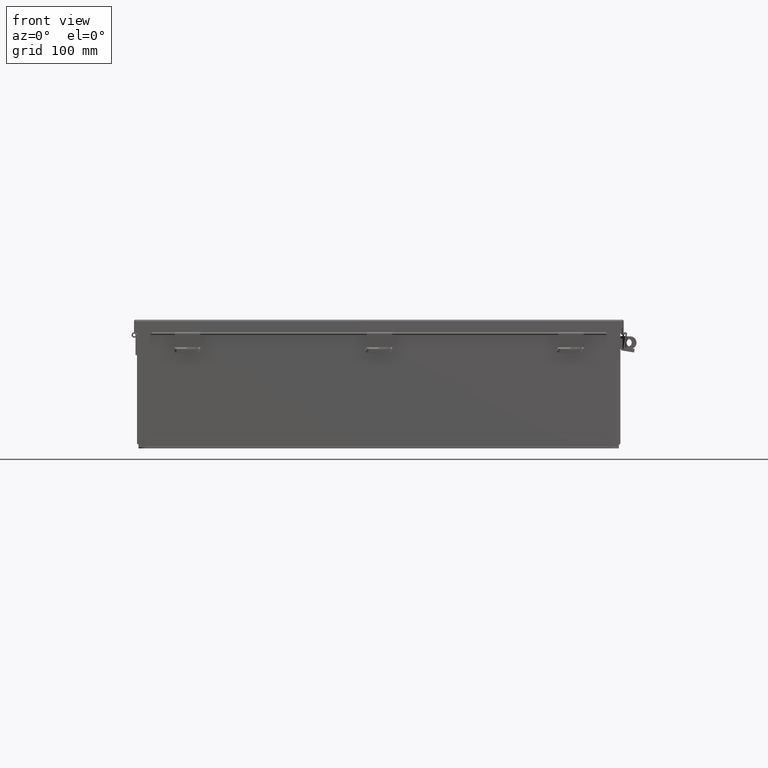
[diagram: clean part render]
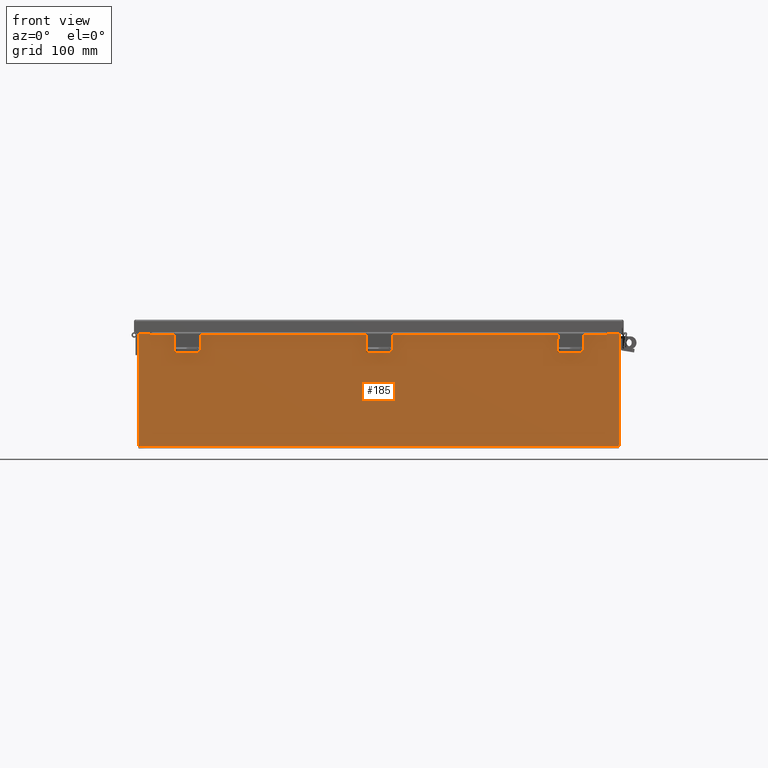
[diagram: same view with one face highlighted and labeled with its STEP entity id]
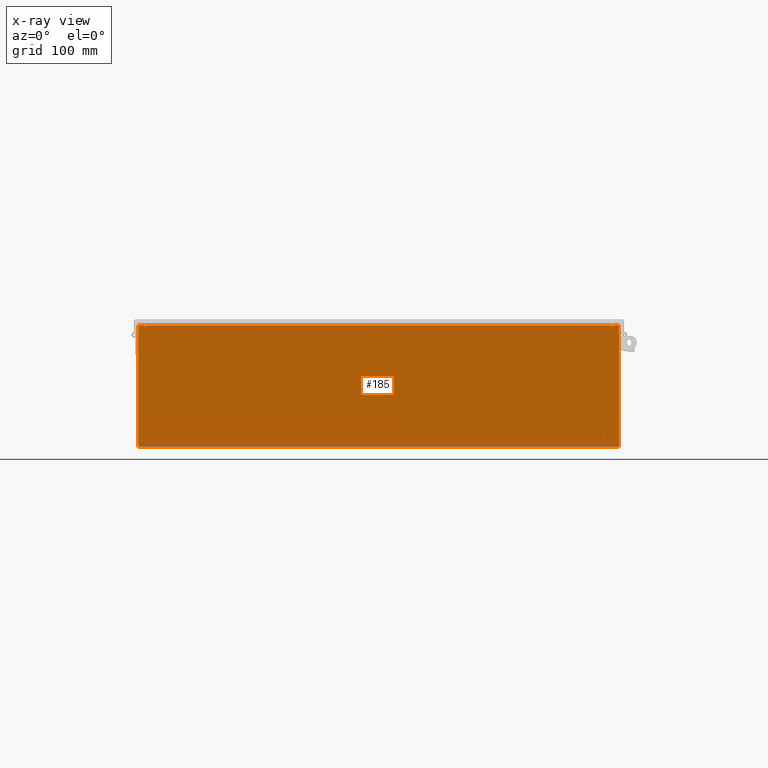
[diagram: x-ray of the same camera — body ghosted, the highlighted face saturated]
A machine part, front view. The second image highlights one B-rep face of the part: STEP entity #185.
The next image is the same camera in x-ray: the body ghosted, the highlighted face saturated — about 0% of this face is hidden behind the body in this view.
In plain terms, the highlighted planar face has unit normal (-0, 1, -0).
Its self-contained STEP definition (entity closure, byte-faithful):
#41 = EDGE_CURVE ( 'NONE', #8021, #5341, #20300, .T. ) ;
#185 = ADVANCED_FACE ( 'NONE', ( #17453 ), #18248, .F. ) ;
#514 = DIRECTION ( 'NONE',  ( 1.000000000000000000, 4.910036603141682400E-031, 0.0000000000000000000 ) ) ;
#1126 = VERTEX_POINT ( 'NONE', #20094 ) ;
#1225 = CARTESIAN_POINT ( 'NONE',  ( 11.92529999999998400, 1.748382715945128500E-014, 2.925300000000000000 ) ) ;
#1274 = VERTEX_POINT ( 'NONE', #1225 ) ;
#1860 = ORIENTED_EDGE ( 'NONE', *, *, #41, .F. ) ;
#2896 = EDGE_CURVE ( 'NONE', #3143, #1274, #10796, .T. ) ;
#3143 = VERTEX_POINT ( 'NONE', #3758 ) ;
#3225 = VERTEX_POINT ( 'NONE', #14711 ) ;
#3647 = DIRECTION ( 'NONE',  ( 7.470954756542614900E-016, 0.0000000000000000000, -1.000000000000000000 ) ) ;
#3695 = CARTESIAN_POINT ( 'NONE',  ( 11.92529999999998400, 1.748382715945128500E-014, 2.925300000000000000 ) ) ;
#3758 = CARTESIAN_POINT ( 'NONE',  ( 11.61964999999997700, 1.748382715945128500E-014, 2.925299999999999100 ) ) ;
#4660 = CARTESIAN_POINT ( 'NONE',  ( 11.58229999999998000, 1.748382715945128500E-014, 2.874949999999997900 ) ) ;
#4785 = VECTOR ( 'NONE', #11269, 39.37007874015748100 ) ;
#4794 = CARTESIAN_POINT ( 'NONE',  ( -11.61965000000001400, 0.0000000000000000000, 2.925300000000000000 ) ) ;
#5087 = LINE ( 'NONE', #15032, #4785 ) ;
#5341 = VERTEX_POINT ( 'NONE', #15458 ) ;
#5366 = VERTEX_POINT ( 'NONE', #19473 ) ;
#6438 = ORIENTED_EDGE ( 'NONE', *, *, #17365, .F. ) ;
#6563 = CIRCLE ( 'NONE', #21027, 0.01867499999999949400 ) ;
#6978 = EDGE_LOOP ( 'NONE', ( #14200, #9655, #1860, #21813, #16044, #16322, #6438, #15110, #16156, #9675, #24854, #8462 ) ) ;
#7058 = CARTESIAN_POINT ( 'NONE',  ( -11.61965000000001400, 0.0000000000000000000, 2.874949999999996600 ) ) ;
#7096 = CARTESIAN_POINT ( 'NONE',  ( 11.61964999999998000, 1.748382715945128500E-014, 2.874949999999997900 ) ) ;
#7551 = DIRECTION ( 'NONE',  ( 1.000000000000000000, 4.910036603141682400E-031, 0.0000000000000000000 ) ) ;
#7915 = EDGE_CURVE ( 'NONE', #3225, #21473, #9851, .T. ) ;
#8021 = VERTEX_POINT ( 'NONE', #11458 ) ;
#8029 = VECTOR ( 'NONE', #514, 39.37007874015748100 ) ;
#8270 = EDGE_CURVE ( 'NONE', #8021, #14753, #5087, .T. ) ;
#8435 = CARTESIAN_POINT ( 'NONE',  ( -11.58229999999999800, 0.0000000000000000000, 4.370956789862821100E-015 ) ) ;
#8462 = ORIENTED_EDGE ( 'NONE', *, *, #7915, .T. ) ;
#9570 = VECTOR ( 'NONE', #7551, 39.37007874015748100 ) ;
#9655 = ORIENTED_EDGE ( 'NONE', *, *, #17396, .F. ) ;
#9675 = ORIENTED_EDGE ( 'NONE', *, *, #12486, .F. ) ;
#9851 = LINE ( 'NONE', #18049, #9570 ) ;
#9985 = DIRECTION ( 'NONE',  ( 0.0000000000000000000, 0.0000000000000000000, -1.000000000000000000 ) ) ;
#9989 = EDGE_CURVE ( 'NONE', #1126, #3225, #22637, .T. ) ;
#10055 = CARTESIAN_POINT ( 'NONE',  ( 11.58229999999998000, 1.748382715945128500E-014, 2.912299999999996600 ) ) ;
#10071 = DIRECTION ( 'NONE',  ( 4.910036603141682400E-031, 1.000000000000000000, -0.0000000000000000000 ) ) ;
#10101 = CARTESIAN_POINT ( 'NONE',  ( 11.60097499999998000, 1.748382715945128500E-014, 2.874949999999997900 ) ) ;
#10796 = LINE ( 'NONE', #18362, #8029 ) ;
#10999 = EDGE_CURVE ( 'NONE', #13957, #24607, #6563, .T. ) ;
#11269 = DIRECTION ( 'NONE',  ( 1.000000000000000000, 4.910036603141682400E-031, -0.0000000000000000000 ) ) ;
#11458 = CARTESIAN_POINT ( 'NONE',  ( -11.58230000000001600, 4.370956789862821100E-015, 2.912299999999997900 ) ) ;
#12330 = AXIS2_PLACEMENT_3D ( 'NONE', #15812, #19040, #18724 ) ;
#12486 = EDGE_CURVE ( 'NONE', #1126, #5366, #20015, .T. ) ;
#13957 = VERTEX_POINT ( 'NONE', #7096 ) ;
#14200 = ORIENTED_EDGE ( 'NONE', *, *, #24378, .F. ) ;
#14432 = DIRECTION ( 'NONE',  ( 0.0000000000000000000, 0.0000000000000000000, -1.000000000000000000 ) ) ;
#14543 = DIRECTION ( 'NONE',  ( 4.910036603141682400E-031, 1.000000000000000000, -0.0000000000000000000 ) ) ;
#14594 = CARTESIAN_POINT ( 'NONE',  ( -11.60097500000001600, 0.0000000000000000000, 2.874949999999996600 ) ) ;
#14711 = CARTESIAN_POINT ( 'NONE',  ( -11.92530000000001600, 0.0000000000000000000, 2.925299999999999100 ) ) ;
#14753 = VERTEX_POINT ( 'NONE', #10055 ) ;
#14834 = CARTESIAN_POINT ( 'NONE',  ( -11.61964999999999800, 0.0000000000000000000, 4.370956789862821100E-015 ) ) ;
#14946 = DIRECTION ( 'NONE',  ( 0.0000000000000000000, 0.0000000000000000000, 1.000000000000000000 ) ) ;
#15032 = CARTESIAN_POINT ( 'NONE',  ( -11.58230000000001600, 4.370956789862821100E-015, 2.912299999999997900 ) ) ;
#15036 = DIRECTION ( 'NONE',  ( 0.0000000000000000000, 0.0000000000000000000, -1.000000000000000000 ) ) ;
#15110 = ORIENTED_EDGE ( 'NONE', *, *, #2896, .T. ) ;
#15388 = CARTESIAN_POINT ( 'NONE',  ( 11.61964999999999800, 0.0000000000000000000, 0.0000000000000000000 ) ) ;
#15458 = CARTESIAN_POINT ( 'NONE',  ( -11.58230000000001600, 0.0000000000000000000, 2.874949999999996600 ) ) ;
#15549 = CIRCLE ( 'NONE', #22501, 0.01867499999999949400 ) ;
#15812 = CARTESIAN_POINT ( 'NONE',  ( 0.0000000000000000000, 0.0000000000000000000, 0.0000000000000000000 ) ) ;
#15829 = LINE ( 'NONE', #15388, #15876 ) ;
#15876 = VECTOR ( 'NONE', #15036, 39.37007874015748100 ) ;
#15945 = VERTEX_POINT ( 'NONE', #7058 ) ;
#16044 = ORIENTED_EDGE ( 'NONE', *, *, #24757, .F. ) ;
#16156 = ORIENTED_EDGE ( 'NONE', *, *, #23804, .T. ) ;
#16322 = ORIENTED_EDGE ( 'NONE', *, *, #10999, .F. ) ;
#17365 = EDGE_CURVE ( 'NONE', #3143, #13957, #15829, .T. ) ;
#17396 = EDGE_CURVE ( 'NONE', #5341, #15945, #15549, .T. ) ;
#17453 = FACE_OUTER_BOUND ( 'NONE', #6978, .T. ) ;
#17577 = DIRECTION ( 'NONE',  ( 0.0000000000000000000, 0.0000000000000000000, -1.000000000000000000 ) ) ;
#18049 = CARTESIAN_POINT ( 'NONE',  ( -11.92530000000001600, 0.0000000000000000000, 2.925299999999999100 ) ) ;
#18248 = PLANE ( 'NONE',  #12330 ) ;
#18362 = CARTESIAN_POINT ( 'NONE',  ( -11.92530000000001600, 0.0000000000000000000, 2.925299999999999100 ) ) ;
#18724 = DIRECTION ( 'NONE',  ( 0.0000000000000000000, 0.0000000000000000000, -1.000000000000000000 ) ) ;
#19040 = DIRECTION ( 'NONE',  ( -4.910036603141682400E-031, -1.000000000000000000, -0.0000000000000000000 ) ) ;
#19473 = CARTESIAN_POINT ( 'NONE',  ( 11.92530000000000500, 2.185478394931410600E-015, -3.099300000000000400 ) ) ;
#19870 = VECTOR ( 'NONE', #22081, 39.37007874015748100 ) ;
#19885 = LINE ( 'NONE', #23892, #19978 ) ;
#19978 = VECTOR ( 'NONE', #23862, 39.37007874015748100 ) ;
#20015 = LINE ( 'NONE', #23473, #19870 ) ;
#20094 = CARTESIAN_POINT ( 'NONE',  ( -11.92529999999999500, -1.748382715945128500E-014, -3.099299999999995900 ) ) ;
#20300 = LINE ( 'NONE', #8435, #20620 ) ;
#20620 = VECTOR ( 'NONE', #17577, 39.37007874015748100 ) ;
#21027 = AXIS2_PLACEMENT_3D ( 'NONE', #10101, #10071, #9985 ) ;
#21169 = VECTOR ( 'NONE', #24003, 39.37007874015748100 ) ;
#21473 = VERTEX_POINT ( 'NONE', #4794 ) ;
#21645 = LINE ( 'NONE', #14834, #21740 ) ;
#21740 = VECTOR ( 'NONE', #14946, 39.37007874015748100 ) ;
#21813 = ORIENTED_EDGE ( 'NONE', *, *, #8270, .T. ) ;
#22081 = DIRECTION ( 'NONE',  ( 1.000000000000000000, 8.208677865577687000E-017, -0.0000000000000000000 ) ) ;
#22501 = AXIS2_PLACEMENT_3D ( 'NONE', #14594, #14543, #14432 ) ;
#22637 = LINE ( 'NONE', #24222, #21169 ) ;
#23473 = CARTESIAN_POINT ( 'NONE',  ( -11.92529999999999600, -1.748382715945128500E-014, -3.099299999999995900 ) ) ;
#23804 = EDGE_CURVE ( 'NONE', #1274, #5366, #23975, .T. ) ;
#23843 = VECTOR ( 'NONE', #3647, 39.37007874015748100 ) ;
#23862 = DIRECTION ( 'NONE',  ( 0.0000000000000000000, 0.0000000000000000000, 1.000000000000000000 ) ) ;
#23892 = CARTESIAN_POINT ( 'NONE',  ( 11.58229999999999800, 0.0000000000000000000, 0.0000000000000000000 ) ) ;
#23975 = LINE ( 'NONE', #3695, #23843 ) ;
#24003 = DIRECTION ( 'NONE',  ( 0.0000000000000000000, 0.0000000000000000000, 1.000000000000000000 ) ) ;
#24222 = CARTESIAN_POINT ( 'NONE',  ( -11.92530000000001600, 0.0000000000000000000, 2.925299999999999100 ) ) ;
#24378 = EDGE_CURVE ( 'NONE', #15945, #21473, #21645, .T. ) ;
#24607 = VERTEX_POINT ( 'NONE', #4660 ) ;
#24757 = EDGE_CURVE ( 'NONE', #24607, #14753, #19885, .T. ) ;
#24854 = ORIENTED_EDGE ( 'NONE', *, *, #9989, .T. ) ;